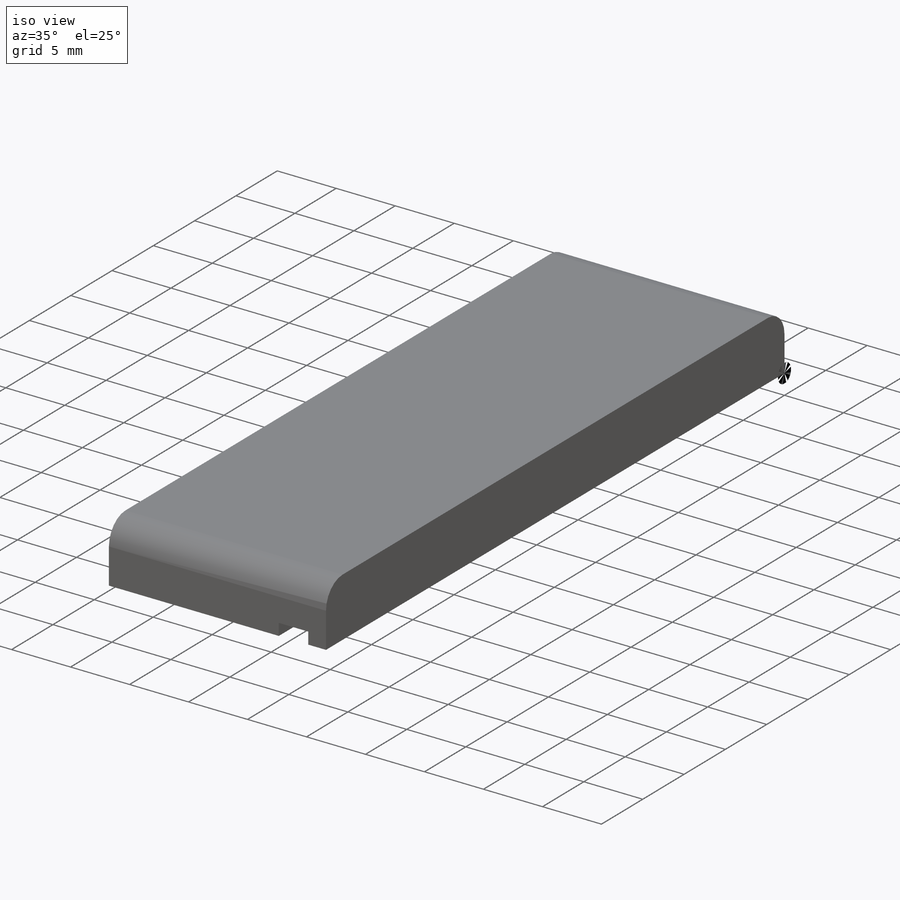
[diagram: iso view]
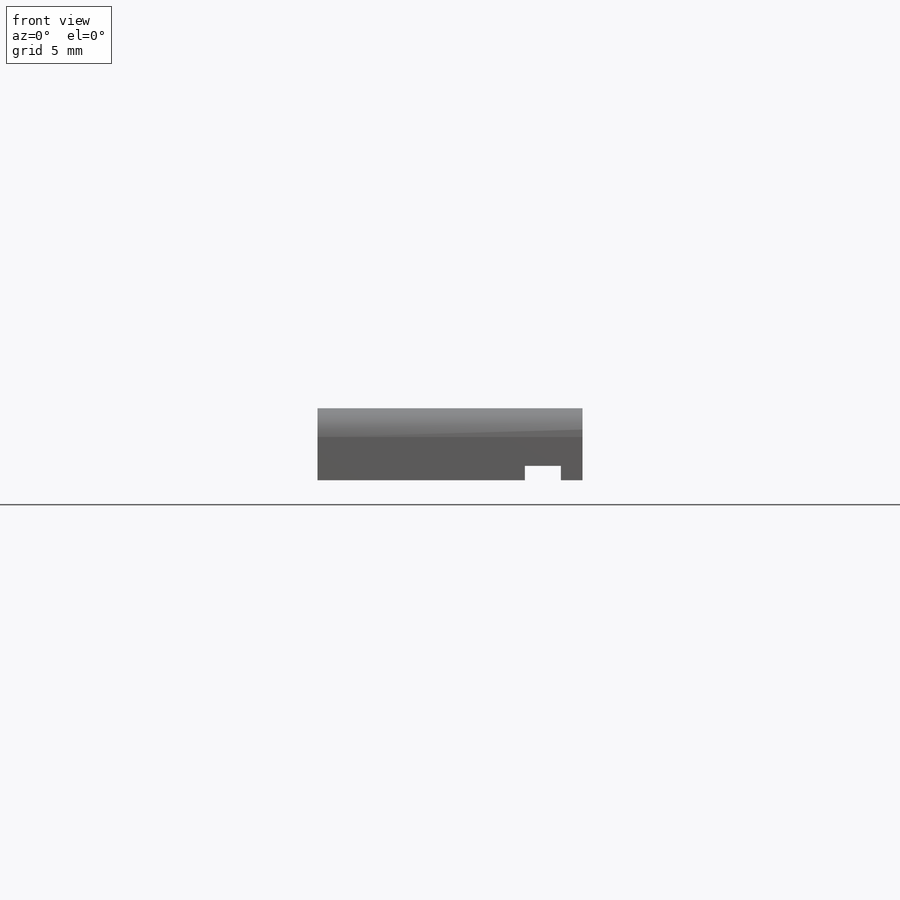
[diagram: front view]
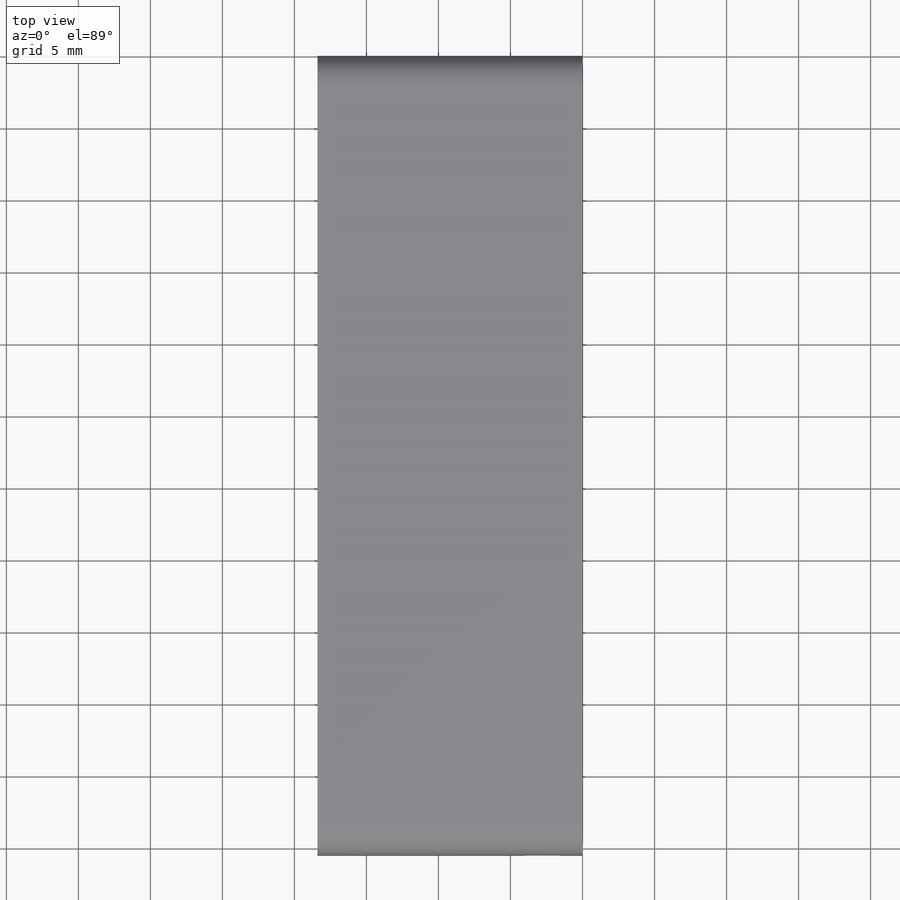
[diagram: top view]
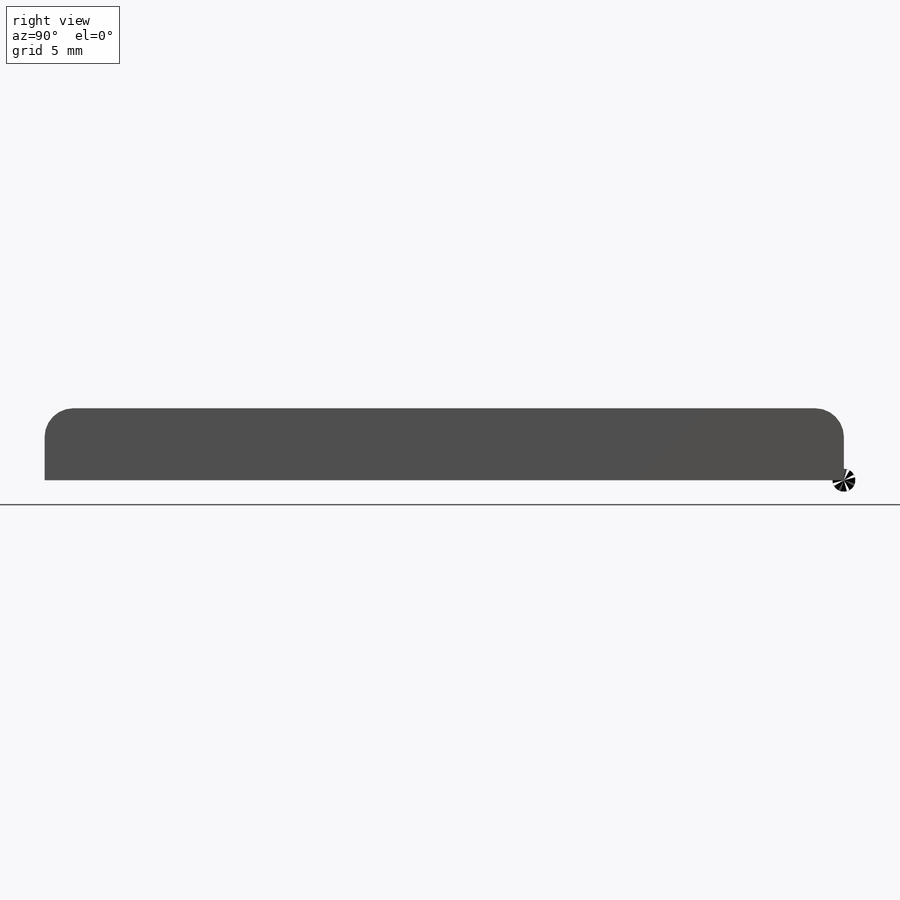
[diagram: right view]
SOLIDWORKS PART (.sldprt)
format: sldprt  version: not decoded by parser v0  size: 262,656 bytes
history: native  units: mm
features: sketch x6, hole x2, material x1, extrude x1, cut_extrude x1, fillet x1 (+12 scaffold rows collapsed)
feature tree (24):
  scaffold x12  (default folders/planes/origin — collapsed)
  material  "Polyetheretherketone (PEEK)"
  sketch  "Sketch1"  dims[c1.D1=~18.438946mm c1.D2=~42.286649mm c2.D1=18.4mm c2.D2=5.0mm]
  extrude  "Boss-Extrude1"  Depth=55.5mm
  sketch  "Sketch2"  dims[D1=1.0mm D2=2.5mm D3=1.5mm]
  cut_extrude  "Cut-Extrude1"  [1 undecoded]
  hole  "M2x0.4 Tapped Hole1"  Diameter=1.6mm Depth=7mm
  sketch  "Sketch4"  dims[D1=2.0mm D2=24.0mm]
  sketch  "Sketch3"  dims[hole-wizard template sketch: 28 standard entries collapsed; hole parameters kept: c8.Tap Drill Dia.=1.6mm c8.Tap Drill Depth=7.0mm c8.Thread Major Dia.=2.0mm c8.Thread Depth=5.0mm c8.D5=~14.816244mm c8.Drill Angle=118.0deg]
  fillet  "Fillet1"  Radius=2mm
  hole  "CBORE for M2 SHCS1"  Diameter=2.4mm Depth=19.5mm
  sketch  "Sketch6"  dims[D1=40.0mm D2=2.5mm]
  sketch  "Sketch5"  dims[hole-wizard template sketch: 42 standard entries collapsed; hole parameters kept: c12.Thru Hole Depth=19.5mm c12.C'Bore Dia.=4.4mm c12.C'Bore Depth=12.0mm]
decode coverage: 10 of 11 modeling features carry decoded parameters
note: ~ marks probable driven/reference dimensions
note: 1 parameter value undecoded
note: suppression state not decoded; provenance and decode notes live in map.json
